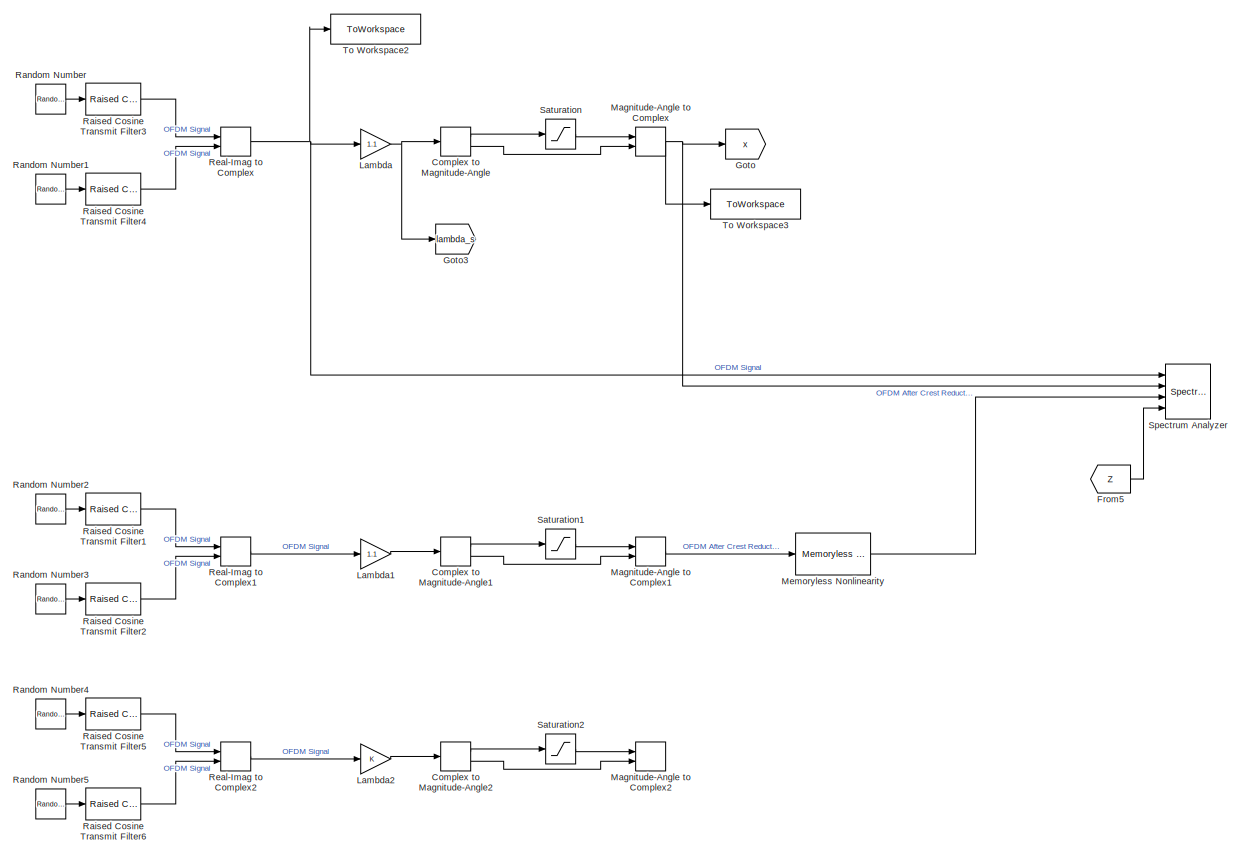
[diagram: root canvas - part 1/2, left side, full height]
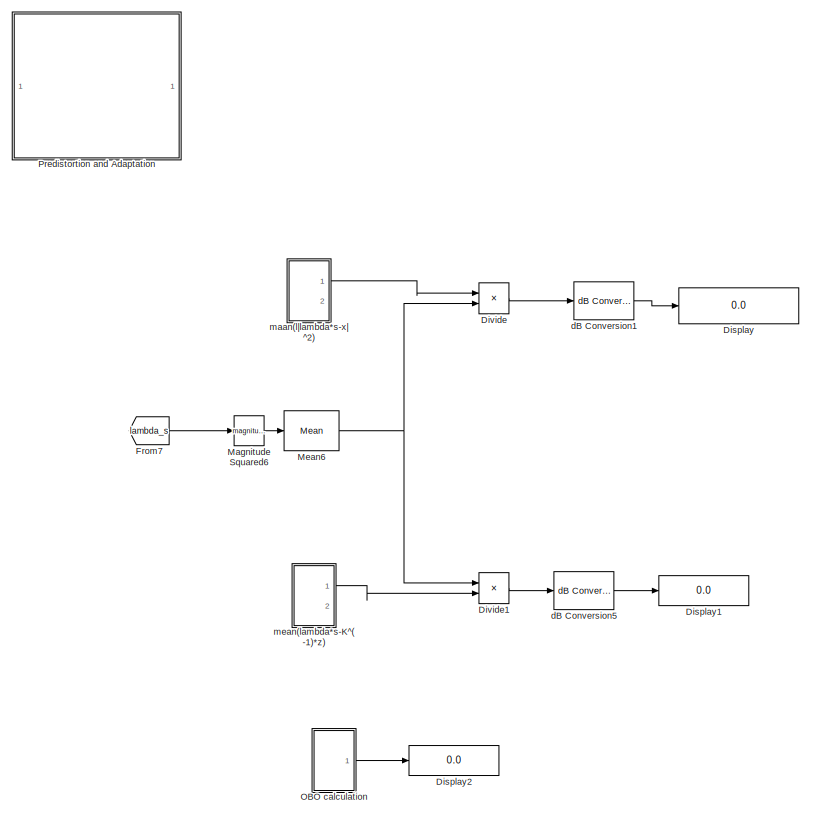
[diagram: root canvas - part 2/2, right side, full height]
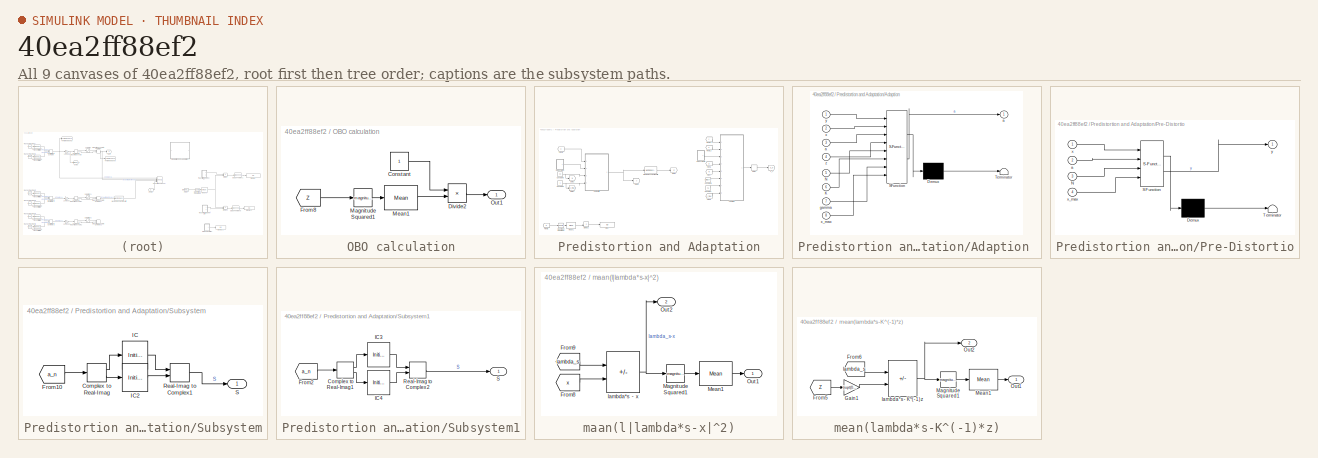
[diagram: thumbnail index - all 9 canvases of the model, root first then tree order]
MODEL slx_40ea2ff88ef2
KIND model
CONFIG AbsTol = auto
CONFIG EnableMultiTasking = off
CONFIG FixedStep = auto
CONFIG InitFcn = a = complex(ones(1,21));
CONFIG MaxStep = auto
CONFIG MinStep = auto
CONFIG RelTol = 1e-3
CONFIG SampleTimeConstraint = Unconstrained
CONFIG SolverName = VariableStepAuto
CONFIG StartTime = 0.0
CONFIG StopTime = 10e-3
BLOCK [ComplexToMagnitudeAngle] Complex to Magnitude-Angle
  Ports = [1, 2]
BLOCK [ComplexToMagnitudeAngle] Complex to Magnitude-Angle1
  Ports = [1, 2]
BLOCK [ComplexToMagnitudeAngle] Complex to Magnitude-Angle2
  Ports = [1, 2]
BLOCK [Display] Display
  Decimation = 1
  Ports = [1]
BLOCK [Display] Display1
  Decimation = 1
  Ports = [1]
BLOCK [Display] Display2
  Decimation = 1
  Ports = [1]
BLOCK [Product] Divide
  Inputs = /*
  Ports = [2, 1]
BLOCK [Product] Divide1
  Inputs = */
  Ports = [2, 1]
BLOCK [From] From5
  GotoTag = Z
  TagVisibility = global
BLOCK [From] From7
  GotoTag = lambda_s
  TagVisibility = global
BLOCK [Goto] Goto
  GotoTag = x
  TagVisibility = global
BLOCK [Goto] Goto3
  GotoTag = lambda_s
  TagVisibility = global
BLOCK [Gain] Lambda
  Gain = 1.1
BLOCK [Gain] Lambda1
  Gain = 1.1
BLOCK [Gain] Lambda2
BLOCK [Math] Magnitude Squared6
  Operator = magnitude^2
  Ports = [1, 1]
BLOCK [MagnitudeAngleToComplex] Magnitude-Angle to Complex
  Ports = [2, 1]
BLOCK [MagnitudeAngleToComplex] Magnitude-Angle to Complex1
  Ports = [2, 1]
BLOCK [MagnitudeAngleToComplex] Magnitude-Angle to Complex2
  Ports = [2, 1]
BLOCK [Reference] Mean6  REF=dspstat3/Mean
  Ports = [1, 1]
  SourceBlock = dspstat3/Mean
  SourceProductBaseCode = DS
  SourceType = Mean
  UserDataPersistent = on
BLOCK [Reference] Memoryless Nonlinearity  REF=commrflib2/Memoryless
Nonlinearity
  Ports = [1, 1]
  SourceBlock = commrflib2/Memoryless\nNonlinearity
  SourceProductBaseCode = CM
  SourceType = Memoryless Nonlinearity
BLOCK [SubSystem] OBO calculation
  Ports = [0, 1]
  RequestExecContextInheritance = off
BLOCK [Constant] OBO calculation/Constant
BLOCK [Product] OBO calculation/Divide2
  Inputs = */
  Ports = [2, 1]
BLOCK [From] OBO calculation/From8
  GotoTag = Z
  TagVisibility = global
BLOCK [Math] OBO calculation/Magnitude Squared1
  Operator = magnitude^2
  Ports = [1, 1]
BLOCK [Reference] OBO calculation/Mean1  REF=dspstat3/Mean
  Ports = [1, 1]
  SourceBlock = dspstat3/Mean
  SourceProductBaseCode = DS
  SourceType = Mean
  UserDataPersistent = on
BLOCK [Outport] OBO calculation/Out1
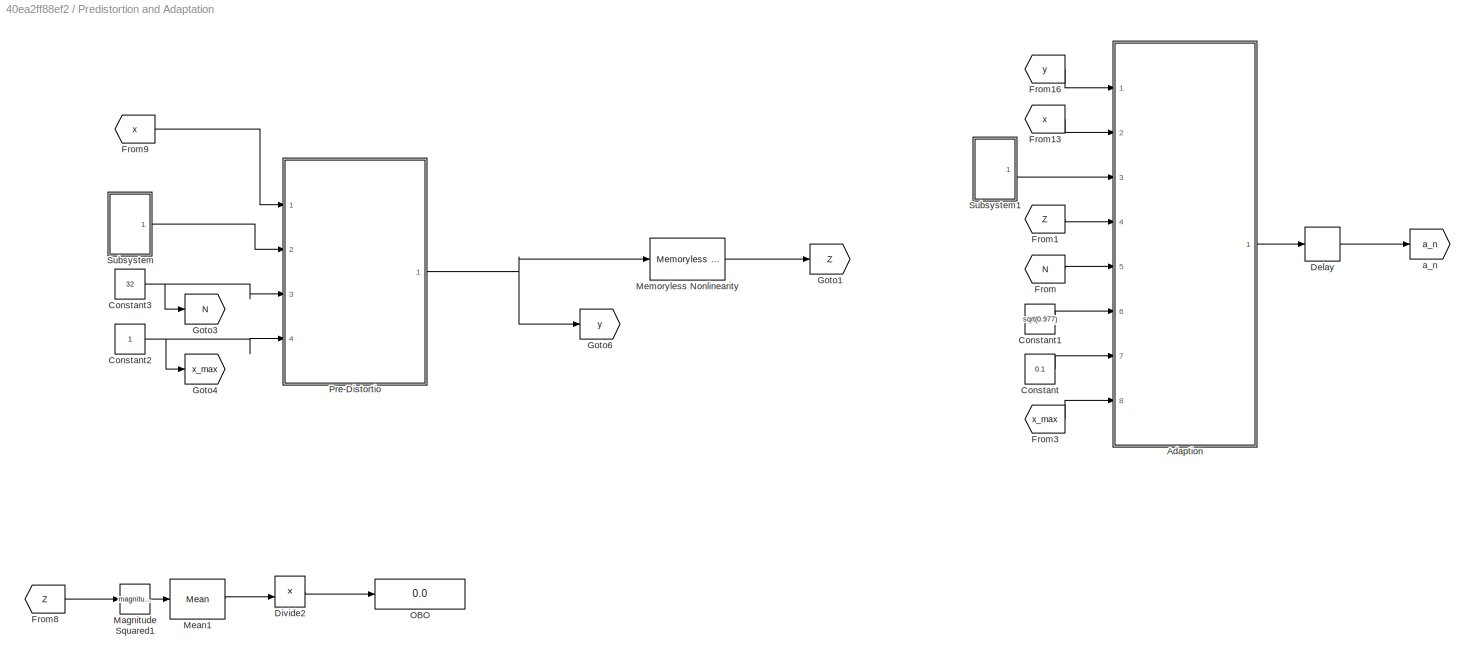
BLOCK [SubSystem] Predistortion and Adaptation
  Ports = []
  RequestExecContextInheritance = off
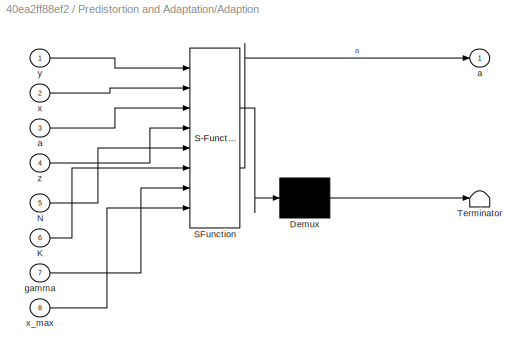
BLOCK [SubSystem] Predistortion and Adaptation/Adaption 
  ErrorFcn = Stateflow.Translate.translate
  PermitHierarchicalResolution = ExplicitOnly
  Ports = [8, 1]
  RequestExecContextInheritance = off
  SFBlockType = MATLAB Function
  TreatAsAtomicUnit = on
BLOCK [Demux] Predistortion and Adaptation/Adaption / Demux 
  Outputs = 1
  Ports = [1, 1]
BLOCK [S-Function] Predistortion and Adaptation/Adaption / SFunction 
  EnableBusSupport = on
  FunctionName = sf_sfun
  PortCounts = [8 2]
  Ports = [8, 2]
  SFcnIsStateOwnerBlock = off
  SFunctionDeploymentMode = off
  Tag = Stateflow S-Function 2
BLOCK [Terminator] Predistortion and Adaptation/Adaption / Terminator 
BLOCK [Inport] Predistortion and Adaptation/Adaption /K
  Port = 6
BLOCK [Inport] Predistortion and Adaptation/Adaption /N
  Port = 5
BLOCK [Outport] Predistortion and Adaptation/Adaption /a
  VectorParamsAs1DForOutWhenUnconnected = off
BLOCK [Inport] Predistortion and Adaptation/Adaption /a 
  Port = 3
BLOCK [Inport] Predistortion and Adaptation/Adaption /gamma
  Port = 7
BLOCK [Inport] Predistortion and Adaptation/Adaption /x
  Port = 2
BLOCK [Inport] Predistortion and Adaptation/Adaption /x_max
  Port = 8
BLOCK [Inport] Predistortion and Adaptation/Adaption /y
BLOCK [Inport] Predistortion and Adaptation/Adaption /z
  Port = 4
BLOCK [Constant] Predistortion and Adaptation/Constant
  Value = 0.1
BLOCK [Constant] Predistortion and Adaptation/Constant1
  Value = sqrt(0.977)
BLOCK [Constant] Predistortion and Adaptation/Constant2
BLOCK [Constant] Predistortion and Adaptation/Constant3
  Value = 32
BLOCK [Delay] Predistortion and Adaptation/Delay
  DelayLength = 1
  InitialCondition = 0
  InputPortMap = u0
  Ports = [1, 1]
BLOCK [Product] Predistortion and Adaptation/Divide2
  Inputs = */
  Ports = [2, 1]
BLOCK [From] Predistortion and Adaptation/From
  GotoTag = N
BLOCK [From] Predistortion and Adaptation/From1
  GotoTag = Z
  TagVisibility = global
BLOCK [From] Predistortion and Adaptation/From13
  GotoTag = x
  TagVisibility = global
BLOCK [From] Predistortion and Adaptation/From16
  GotoTag = y
BLOCK [From] Predistortion and Adaptation/From3
  GotoTag = x_max
BLOCK [From] Predistortion and Adaptation/From8
  GotoTag = Z
  TagVisibility = global
BLOCK [From] Predistortion and Adaptation/From9
  GotoTag = x
  TagVisibility = global
BLOCK [Goto] Predistortion and Adaptation/Goto1
  GotoTag = Z
  TagVisibility = global
BLOCK [Goto] Predistortion and Adaptation/Goto3
  GotoTag = N
BLOCK [Goto] Predistortion and Adaptation/Goto4
  GotoTag = x_max
BLOCK [Goto] Predistortion and Adaptation/Goto6
  GotoTag = y
BLOCK [Math] Predistortion and Adaptation/Magnitude Squared1
  Operator = magnitude^2
  Ports = [1, 1]
BLOCK [Reference] Predistortion and Adaptation/Mean1  REF=dspstat3/Mean
  Ports = [1, 1]
  SourceBlock = dspstat3/Mean
  SourceProductBaseCode = DS
  SourceType = Mean
  UserDataPersistent = on
BLOCK [Reference] Predistortion and Adaptation/Memoryless Nonlinearity  REF=commrflib2/Memoryless
Nonlinearity
  Ports = [1, 1]
  SourceBlock = commrflib2/Memoryless\nNonlinearity
  SourceProductBaseCode = CM
  SourceType = Memoryless Nonlinearity
BLOCK [Display] Predistortion and Adaptation/OBO
  Decimation = 1
  Ports = [1]
BLOCK [SubSystem] Predistortion and Adaptation/Pre-Distortio
  ErrorFcn = Stateflow.Translate.translate
  PermitHierarchicalResolution = ExplicitOnly
  Ports = [4, 1]
  RequestExecContextInheritance = off
  SFBlockType = MATLAB Function
  TreatAsAtomicUnit = on
BLOCK [Demux] Predistortion and Adaptation/Pre-Distortio/ Demux 
  Outputs = 1
  Ports = [1, 1]
BLOCK [S-Function] Predistortion and Adaptation/Pre-Distortio/ SFunction 
  EnableBusSupport = on
  FunctionName = sf_sfun
  PortCounts = [4 2]
  Ports = [4, 2]
  SFcnIsStateOwnerBlock = off
  SFunctionDeploymentMode = off
  Tag = Stateflow S-Function 1
BLOCK [Terminator] Predistortion and Adaptation/Pre-Distortio/ Terminator 
BLOCK [Inport] Predistortion and Adaptation/Pre-Distortio/N
  Port = 3
BLOCK [Inport] Predistortion and Adaptation/Pre-Distortio/a
  Port = 2
BLOCK [Inport] Predistortion and Adaptation/Pre-Distortio/x
BLOCK [Inport] Predistortion and Adaptation/Pre-Distortio/x_max
  Port = 4
BLOCK [Outport] Predistortion and Adaptation/Pre-Distortio/y
  VectorParamsAs1DForOutWhenUnconnected = off
BLOCK [SubSystem] Predistortion and Adaptation/Subsystem
  Ports = [0, 1]
  RequestExecContextInheritance = off
BLOCK [ComplexToRealImag] Predistortion and Adaptation/Subsystem/Complex to Real-Imag
  Ports = [1, 2]
BLOCK [From] Predistortion and Adaptation/Subsystem/From10
  GotoTag = a_n
  TagVisibility = global
BLOCK [InitialCondition] Predistortion and Adaptation/Subsystem/IC
  Value = ones(1,33)
BLOCK [InitialCondition] Predistortion and Adaptation/Subsystem/IC2
  Value = zeros(1,33)
BLOCK [RealImagToComplex] Predistortion and Adaptation/Subsystem/Real-Imag to Complex1
  Ports = [2, 1]
BLOCK [Outport] Predistortion and Adaptation/Subsystem/S
BLOCK [SubSystem] Predistortion and Adaptation/Subsystem1
  Ports = [0, 1]
  RequestExecContextInheritance = off
BLOCK [ComplexToRealImag] Predistortion and Adaptation/Subsystem1/Complex to Real-Imag1
  Ports = [1, 2]
BLOCK [From] Predistortion and Adaptation/Subsystem1/From2
  GotoTag = a_n
  TagVisibility = global
BLOCK [InitialCondition] Predistortion and Adaptation/Subsystem1/IC3
  Value = ones(1,33)
BLOCK [InitialCondition] Predistortion and Adaptation/Subsystem1/IC4
  Value = zeros(1,33)
BLOCK [RealImagToComplex] Predistortion and Adaptation/Subsystem1/Real-Imag to Complex2
  Ports = [2, 1]
BLOCK [Outport] Predistortion and Adaptation/Subsystem1/S
BLOCK [Goto] Predistortion and Adaptation/a_n
  GotoTag = a_n
  TagVisibility = global
BLOCK [Reference] Raised Cosine Transmit Filter1  REF=commfilt2/Raised Cosine
Transmit Filter
  Ports = [1, 1]
  SourceBlock = commfilt2/Raised Cosine\nTransmit Filter
  SourceProductBaseCode = CM
  SourceType = Raised Cosine Transmit Filter
BLOCK [Reference] Raised Cosine Transmit Filter2  REF=commfilt2/Raised Cosine
Transmit Filter
  Ports = [1, 1]
  SourceBlock = commfilt2/Raised Cosine\nTransmit Filter
  SourceProductBaseCode = CM
  SourceType = Raised Cosine Transmit Filter
BLOCK [Reference] Raised Cosine Transmit Filter3  REF=commfilt2/Raised Cosine
Transmit Filter
  Ports = [1, 1]
  SourceBlock = commfilt2/Raised Cosine\nTransmit Filter
  SourceProductBaseCode = CM
  SourceType = Raised Cosine Transmit Filter
BLOCK [Reference] Raised Cosine Transmit Filter4  REF=commfilt2/Raised Cosine
Transmit Filter
  Ports = [1, 1]
  SourceBlock = commfilt2/Raised Cosine\nTransmit Filter
  SourceProductBaseCode = CM
  SourceType = Raised Cosine Transmit Filter
BLOCK [Reference] Raised Cosine Transmit Filter5  REF=commfilt2/Raised Cosine
Transmit Filter
  Ports = [1, 1]
  SourceBlock = commfilt2/Raised Cosine\nTransmit Filter
  SourceProductBaseCode = CM
  SourceType = Raised Cosine Transmit Filter
BLOCK [Reference] Raised Cosine Transmit Filter6  REF=commfilt2/Raised Cosine
Transmit Filter
  Ports = [1, 1]
  SourceBlock = commfilt2/Raised Cosine\nTransmit Filter
  SourceProductBaseCode = CM
  SourceType = Raised Cosine Transmit Filter
BLOCK [RandomNumber] Random Number
  SampleTime = 0.0000001
  Seed = 1
  Variance = 0.5
BLOCK [RandomNumber] Random Number1
  SampleTime = 0.0000001
  Seed = 2
  Variance = 0.5
BLOCK [RandomNumber] Random Number2
  SampleTime = 0.0000001
  Seed = 1
  Variance = 0.5
BLOCK [RandomNumber] Random Number3
  SampleTime = 0.0000001
  Seed = 2
  Variance = 0.5
BLOCK [RandomNumber] Random Number4
  SampleTime = 0.0000001
  Seed = 1
BLOCK [RandomNumber] Random Number5
  SampleTime = 0.0000001
  Seed = 2
  Variance = 0.5
BLOCK [RealImagToComplex] Real-Imag to Complex
  Ports = [2, 1]
BLOCK [RealImagToComplex] Real-Imag to Complex1
  Ports = [2, 1]
BLOCK [RealImagToComplex] Real-Imag to Complex2
  Ports = [2, 1]
BLOCK [Saturate] Saturation
  LowerLimit = 0
  UpperLimit = 1
BLOCK [Saturate] Saturation1
  LowerLimit = 0
  UpperLimit = 1
BLOCK [Saturate] Saturation2
  LowerLimit = 0
  UpperLimit = 1
BLOCK [SpectrumAnalyzer] Spectrum Analyzer
  NumInputPorts = 4
  Ports = [4]
  ScopeSpecificationString = spbscopes.SpectrumAnalyzerBlockCfg('CurrentConfiguration', extmgr.ConfigurationSet(extmgr.Configuration('Core','General UI',true,'FigureColor',[1 1 1]),extmgr.Configuration('Core','Source UI',true),extmgr.Configuration('Sources','WiredSimulink',true),extmgr.Configuration('Visuals','Spectrum',true,'AxesProperties',struct('Color',{[1 1 1],[1 1 1]},'XColor',{[0 0 0],[0 0 0]},'YColor',{[0 0 0],[0 0 0]...<+2114ch>
BLOCK [ToWorkspace] To Workspace2
  FixptAsFi = on
  MaxDataPoints = inf
  Ports = [1]
  SampleTime = -1
  Save2DSignal = 2-D array (concatenate along first dimension)
  VariableName = s
BLOCK [ToWorkspace] To Workspace3
  FixptAsFi = on
  MaxDataPoints = inf
  Ports = [1]
  SampleTime = -1
  Save2DSignal = 2-D array (concatenate along first dimension)
  VariableName = x
BLOCK [Reference] dB Conversion1  REF=dspmathops/dB Conversion
  Ports = [1, 1]
  SourceBlock = dspmathops/dB Conversion
  SourceProductBaseCode = DS
  SourceType = dB Conversion
BLOCK [Reference] dB Conversion5  REF=dspmathops/dB Conversion
  Ports = [1, 1]
  SourceBlock = dspmathops/dB Conversion
  SourceProductBaseCode = DS
  SourceType = dB Conversion
BLOCK [SubSystem] maan(l|lambda*s-x|^2)
  Ports = [0, 2]
  RequestExecContextInheritance = off
BLOCK [From] maan(l|lambda*s-x|^2)/From8
  GotoTag = x
  TagVisibility = global
BLOCK [From] maan(l|lambda*s-x|^2)/From9
  GotoTag = lambda_s
  TagVisibility = global
BLOCK [Math] maan(l|lambda*s-x|^2)/Magnitude Squared1
  Operator = magnitude^2
  Ports = [1, 1]
BLOCK [Reference] maan(l|lambda*s-x|^2)/Mean1  REF=dspstat3/Mean
  Ports = [1, 1]
  SourceBlock = dspstat3/Mean
  SourceProductBaseCode = DS
  SourceType = Mean
  UserDataPersistent = on
BLOCK [Outport] maan(l|lambda*s-x|^2)/Out1
BLOCK [Outport] maan(l|lambda*s-x|^2)/Out2
  Port = 2
BLOCK [Sum] maan(l|lambda*s-x|^2)/lambda*s - x
  IconShape = rectangular
  Inputs = +-
  Ports = [2, 1]
BLOCK [SubSystem] mean(lambda*s-K^(-1)*z)
  Ports = [0, 2]
  RequestExecContextInheritance = off
BLOCK [From] mean(lambda*s-K^(-1)*z)/From5
  GotoTag = Z
  TagVisibility = global
BLOCK [From] mean(lambda*s-K^(-1)*z)/From6
  GotoTag = lambda_s
  TagVisibility = global
BLOCK [Gain] mean(lambda*s-K^(-1)*z)/Gain1
  Gain = (sqrt(0.977))^(-1)
BLOCK [Math] mean(lambda*s-K^(-1)*z)/Magnitude Squared1
  Operator = magnitude^2
  Ports = [1, 1]
BLOCK [Reference] mean(lambda*s-K^(-1)*z)/Mean1  REF=dspstat3/Mean
  Ports = [1, 1]
  SourceBlock = dspstat3/Mean
  SourceProductBaseCode = DS
  SourceType = Mean
  UserDataPersistent = on
BLOCK [Outport] mean(lambda*s-K^(-1)*z)/Out1
BLOCK [Outport] mean(lambda*s-K^(-1)*z)/Out2
  Port = 2
BLOCK [Sum] mean(lambda*s-K^(-1)*z)/lambda*s - K^(-1)z
  IconShape = rectangular
  Inputs = +-
  Ports = [2, 1]
LINE Complex to Magnitude-Angle1:1 -> Saturation1:1
LINE Complex to Magnitude-Angle1:2 -> Magnitude-Angle to Complex1:2
LINE Complex to Magnitude-Angle2:1 -> Saturation2:1
LINE Complex to Magnitude-Angle2:2 -> Magnitude-Angle to Complex2:2
LINE Complex to Magnitude-Angle:1 -> Saturation:1
LINE Complex to Magnitude-Angle:2 -> Magnitude-Angle to Complex:2
LINE Divide1:1 -> dB Conversion5:1
LINE Divide:1 -> dB Conversion1:1
LINE From5:1 -> Spectrum Analyzer:4
LINE From7:1 -> Magnitude Squared6:1
LINE Lambda1:1 -> Complex to Magnitude-Angle1:1
LINE Lambda2:1 -> Complex to Magnitude-Angle2:1
NET Lambda:1 -> Complex to Magnitude-Angle:1, Goto3:1
LINE Magnitude Squared6:1 -> Mean6:1
LINE Magnitude-Angle to Complex1:1 -> Memoryless Nonlinearity:1
NET Magnitude-Angle to Complex:1 -> Goto:1, Spectrum Analyzer:2, To Workspace3:1
NET Mean6:1 -> Divide1:1, Divide:2
LINE Memoryless Nonlinearity:1 -> Spectrum Analyzer:3
LINE OBO calculation/Constant:1 -> OBO calculation/Divide2:1
LINE OBO calculation/Divide2:1 -> OBO calculation/Out1:1
LINE OBO calculation/From8:1 -> OBO calculation/Magnitude Squared1:1
LINE OBO calculation/Magnitude Squared1:1 -> OBO calculation/Mean1:1
LINE OBO calculation/Mean1:1 -> OBO calculation/Divide2:2
LINE OBO calculation:1 -> Display2:1
LINE Predistortion and Adaptation/Adaption :1 -> Predistortion and Adaptation/Delay:1
LINE Predistortion and Adaptation/Constant1:1 -> Predistortion and Adaptation/Adaption :6
NET Predistortion and Adaptation/Constant2:1 -> Predistortion and Adaptation/Goto4:1, Predistortion and Adaptation/Pre-Distortio:4
NET Predistortion and Adaptation/Constant3:1 -> Predistortion and Adaptation/Goto3:1, Predistortion and Adaptation/Pre-Distortio:3
LINE Predistortion and Adaptation/Constant:1 -> Predistortion and Adaptation/Adaption :7
LINE Predistortion and Adaptation/Delay:1 -> Predistortion and Adaptation/a_n:1
LINE Predistortion and Adaptation/Divide2:1 -> Predistortion and Adaptation/OBO:1
LINE Predistortion and Adaptation/From13:1 -> Predistortion and Adaptation/Adaption :2
LINE Predistortion and Adaptation/From16:1 -> Predistortion and Adaptation/Adaption :1
LINE Predistortion and Adaptation/From1:1 -> Predistortion and Adaptation/Adaption :4
LINE Predistortion and Adaptation/From3:1 -> Predistortion and Adaptation/Adaption :8
LINE Predistortion and Adaptation/From8:1 -> Predistortion and Adaptation/Magnitude Squared1:1
LINE Predistortion and Adaptation/From9:1 -> Predistortion and Adaptation/Pre-Distortio:1
LINE Predistortion and Adaptation/From:1 -> Predistortion and Adaptation/Adaption :5
LINE Predistortion and Adaptation/Magnitude Squared1:1 -> Predistortion and Adaptation/Mean1:1
LINE Predistortion and Adaptation/Mean1:1 -> Predistortion and Adaptation/Divide2:2
LINE Predistortion and Adaptation/Memoryless Nonlinearity:1 -> Predistortion and Adaptation/Goto1:1
NET Predistortion and Adaptation/Pre-Distortio:1 -> Predistortion and Adaptation/Goto6:1, Predistortion and Adaptation/Memoryless Nonlinearity:1
LINE Predistortion and Adaptation/Subsystem/Complex to Real-Imag:1 -> Predistortion and Adaptation/Subsystem/IC:1
LINE Predistortion and Adaptation/Subsystem/Complex to Real-Imag:2 -> Predistortion and Adaptation/Subsystem/IC2:1
LINE Predistortion and Adaptation/Subsystem/From10:1 -> Predistortion and Adaptation/Subsystem/Complex to Real-Imag:1
LINE Predistortion and Adaptation/Subsystem/IC2:1 -> Predistortion and Adaptation/Subsystem/Real-Imag to Complex1:2
LINE Predistortion and Adaptation/Subsystem/IC:1 -> Predistortion and Adaptation/Subsystem/Real-Imag to Complex1:1
LINE Predistortion and Adaptation/Subsystem/Real-Imag to Complex1:1 -> Predistortion and Adaptation/Subsystem/S:1
LINE Predistortion and Adaptation/Subsystem1/Complex to Real-Imag1:1 -> Predistortion and Adaptation/Subsystem1/IC3:1
LINE Predistortion and Adaptation/Subsystem1/Complex to Real-Imag1:2 -> Predistortion and Adaptation/Subsystem1/IC4:1
LINE Predistortion and Adaptation/Subsystem1/From2:1 -> Predistortion and Adaptation/Subsystem1/Complex to Real-Imag1:1
LINE Predistortion and Adaptation/Subsystem1/IC3:1 -> Predistortion and Adaptation/Subsystem1/Real-Imag to Complex2:1
LINE Predistortion and Adaptation/Subsystem1/IC4:1 -> Predistortion and Adaptation/Subsystem1/Real-Imag to Complex2:2
LINE Predistortion and Adaptation/Subsystem1/Real-Imag to Complex2:1 -> Predistortion and Adaptation/Subsystem1/S:1
LINE Predistortion and Adaptation/Subsystem1:1 -> Predistortion and Adaptation/Adaption :3
LINE Predistortion and Adaptation/Subsystem:1 -> Predistortion and Adaptation/Pre-Distortio:2
LINE Raised Cosine Transmit Filter1:1 -> Real-Imag to Complex1:1
LINE Raised Cosine Transmit Filter2:1 -> Real-Imag to Complex1:2
LINE Raised Cosine Transmit Filter3:1 -> Real-Imag to Complex:1
LINE Raised Cosine Transmit Filter4:1 -> Real-Imag to Complex:2
LINE Raised Cosine Transmit Filter5:1 -> Real-Imag to Complex2:1
LINE Raised Cosine Transmit Filter6:1 -> Real-Imag to Complex2:2
LINE Random Number1:1 -> Raised Cosine Transmit Filter4:1
LINE Random Number2:1 -> Raised Cosine Transmit Filter1:1
LINE Random Number3:1 -> Raised Cosine Transmit Filter2:1
LINE Random Number4:1 -> Raised Cosine Transmit Filter5:1
LINE Random Number5:1 -> Raised Cosine Transmit Filter6:1
LINE Random Number:1 -> Raised Cosine Transmit Filter3:1
LINE Real-Imag to Complex1:1 -> Lambda1:1
LINE Real-Imag to Complex2:1 -> Lambda2:1
NET Real-Imag to Complex:1 -> Lambda:1, Spectrum Analyzer:1, To Workspace2:1
LINE Saturation1:1 -> Magnitude-Angle to Complex1:1
LINE Saturation2:1 -> Magnitude-Angle to Complex2:1
LINE Saturation:1 -> Magnitude-Angle to Complex:1
LINE dB Conversion1:1 -> Display:1
LINE dB Conversion5:1 -> Display1:1
LINE maan(l|lambda*s-x|^2)/From8:1 -> maan(l|lambda*s-x|^2)/lambda*s - x:2
LINE maan(l|lambda*s-x|^2)/From9:1 -> maan(l|lambda*s-x|^2)/lambda*s - x:1
LINE maan(l|lambda*s-x|^2)/Magnitude Squared1:1 -> maan(l|lambda*s-x|^2)/Mean1:1
LINE maan(l|lambda*s-x|^2)/Mean1:1 -> maan(l|lambda*s-x|^2)/Out1:1
NET maan(l|lambda*s-x|^2)/lambda*s - x:1 -> maan(l|lambda*s-x|^2)/Magnitude Squared1:1, maan(l|lambda*s-x|^2)/Out2:1
LINE maan(l|lambda*s-x|^2):1 -> Divide:1
LINE mean(lambda*s-K^(-1)*z)/From5:1 -> mean(lambda*s-K^(-1)*z)/Gain1:1
LINE mean(lambda*s-K^(-1)*z)/From6:1 -> mean(lambda*s-K^(-1)*z)/lambda*s - K^(-1)z:1
LINE mean(lambda*s-K^(-1)*z)/Gain1:1 -> mean(lambda*s-K^(-1)*z)/lambda*s - K^(-1)z:2
LINE mean(lambda*s-K^(-1)*z)/Magnitude Squared1:1 -> mean(lambda*s-K^(-1)*z)/Mean1:1
LINE mean(lambda*s-K^(-1)*z)/Mean1:1 -> mean(lambda*s-K^(-1)*z)/Out1:1
NET mean(lambda*s-K^(-1)*z)/lambda*s - K^(-1)z:1 -> mean(lambda*s-K^(-1)*z)/Magnitude Squared1:1, mean(lambda*s-K^(-1)*z)/Out2:1
LINE mean(lambda*s-K^(-1)*z):1 -> Divide1:2
note: NET lines group one-source signal fan-out (src -> all destinations, sorted); 1:1 wires keep LINE
CHART Predistortion and Adaptation/Pre-Distortio states=1 transitions=1
  STATE_LABEL 'eML_blk_kernel()'
  STATE_LABEL 'SCRIPT:\nfunction y  = predistortion(x,a,N,x_max)\n    %Interval detection\n    delta = abs(x_max) / (2*N); \n    % All intervals\n    I = [delta*2:delta*2:x_max inf];\n    % Find the Parameter Index where the abs(x) falls\n    n = 1:(N+1);\n    n = n(abs(x) < I);\n    n = n(1);\n    % Piecewise Linear Interpolation\n    P_x = ((abs(x) - (2*n-1)*delta) * (a(min(n+1,N+1)) - a(n)) / (2*delta)) + ((a(min(n+1,N+...<+80ch>'
CHART Predistortion and Adaptation/Adaption
 states=1 transitions=1
  STATE_LABEL 'eML_blk_kernel()'
  STATE_LABEL 'SCRIPT:\nfunction a = Adaption(y, x, a, z, N, K, gamma, x_max)\n    \n    %Re-do the same because of causality of the first initialization\n    delta = abs(x_max) / (2*N);\n    % All Intervals\n    I = [delta:delta*2:x_max inf];\n    n = 1:(N+1);\n    n = n(abs(x) < I);\n    n = n(1);\n    % Update Coefficients\n    a(n) = (a(n) - gamma * (z - K * x) * conj(z) / conj(y) * conj(x)); \nend'
CHART  states=0 transitions=0
CHART  states=0 transitions=0
